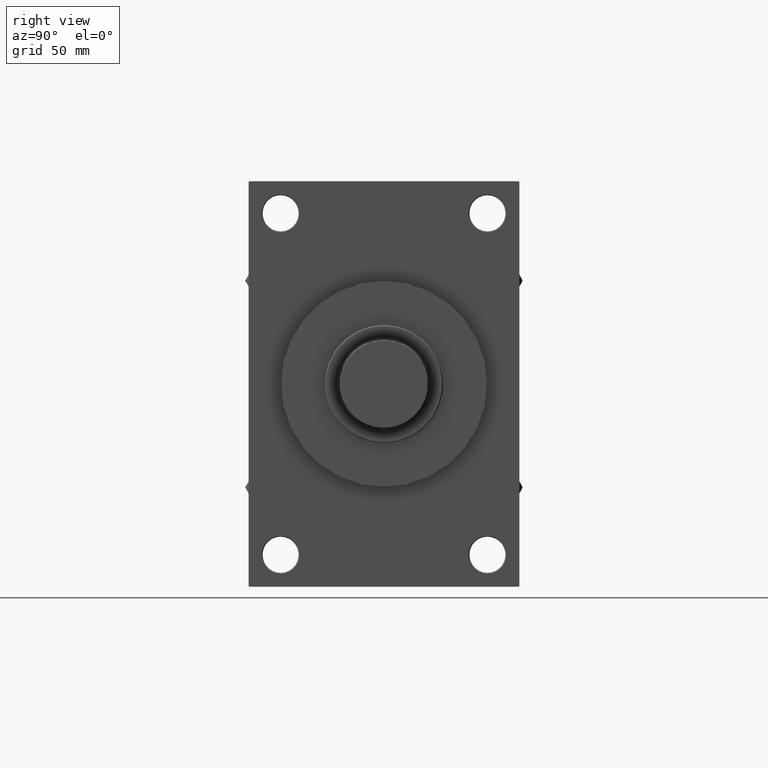
[diagram: clean part render]
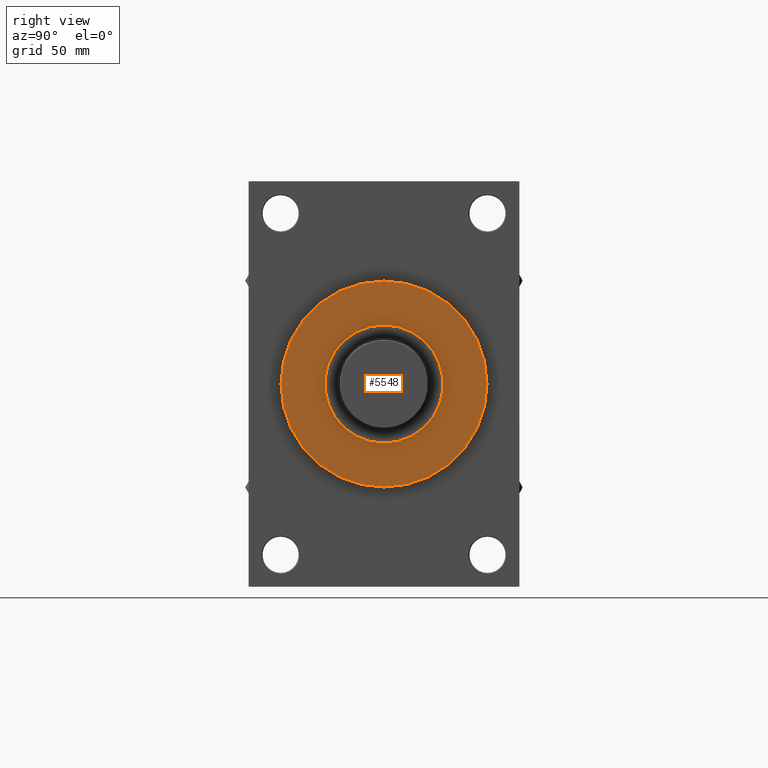
[diagram: same view with one face highlighted and labeled with its STEP entity id]
A machine part, right view. The second image highlights one B-rep face of the part: STEP entity #5548.
In plain terms, the highlighted planar face has unit normal (1, -0, -0).
Its self-contained STEP definition (entity closure, byte-faithful):
#283 = DIRECTION ( 'NONE',  ( 1.000000000000000000, 0.000000000000000000, 0.000000000000000000 ) ) ;
#2369 = EDGE_LOOP ( 'NONE', ( #7704, #5018 ) ) ;
#3419 = DIRECTION ( 'NONE',  ( 1.000000000000000000, 0.000000000000000000, 0.000000000000000000 ) ) ;
#3451 = CARTESIAN_POINT ( 'NONE',  ( 0.000000000000000000, 0.000000000000000000, 43.25999999999999801 ) ) ;
#3571 = CARTESIAN_POINT ( 'NONE',  ( 0.000000000000000000, 0.000000000000000000, 43.25999999999999801 ) ) ;
#5018 = ORIENTED_EDGE ( 'NONE', *, *, #32729, .T. ) ;
#5548 = ADVANCED_FACE ( 'NONE', ( #7234, #47410 ), #43773, .T. ) ;
#6362 = CARTESIAN_POINT ( 'NONE',  ( 0.000000000000000000, 0.000000000000000000, 43.25999999999999801 ) ) ;
#7208 = VERTEX_POINT ( 'NONE', #36078 ) ;
#7234 = FACE_BOUND ( 'NONE', #37632, .T. ) ;
#7704 = ORIENTED_EDGE ( 'NONE', *, *, #32087, .T. ) ;
#9775 = DIRECTION ( 'NONE',  ( 0.000000000000000000, 0.000000000000000000, 1.000000000000000000 ) ) ;
#10787 = CIRCLE ( 'NONE', #14686, 36.00000000000000000 ) ;
#10891 = DIRECTION ( 'NONE',  ( 0.000000000000000000, 0.000000000000000000, 1.000000000000000000 ) ) ;
#11030 = CIRCLE ( 'NONE', #42036, 62.75000000000000000 ) ;
#13541 = AXIS2_PLACEMENT_3D ( 'NONE', #3571, #10891, #29377 ) ;
#14535 = VERTEX_POINT ( 'NONE', #17293 ) ;
#14686 = AXIS2_PLACEMENT_3D ( 'NONE', #6362, #9775, #32631 ) ;
#17293 = CARTESIAN_POINT ( 'NONE',  ( -62.75000000000000000, 0.000000000000000000, 43.25999999999999801 ) ) ;
#17668 = DIRECTION ( 'NONE',  ( 0.000000000000000000, 0.000000000000000000, 1.000000000000000000 ) ) ;
#18634 = CARTESIAN_POINT ( 'NONE',  ( 0.000000000000000000, 0.000000000000000000, 43.25999999999999801 ) ) ;
#20048 = VERTEX_POINT ( 'NONE', #47818 ) ;
#20445 = ORIENTED_EDGE ( 'NONE', *, *, #44913, .F. ) ;
#23253 = AXIS2_PLACEMENT_3D ( 'NONE', #37505, #36779, #3419 ) ;
#24481 = EDGE_CURVE ( 'NONE', #7208, #38054, #28682, .T. ) ;
#28682 = CIRCLE ( 'NONE', #23253, 36.00000000000000000 ) ;
#28810 = AXIS2_PLACEMENT_3D ( 'NONE', #3451, #36814, #283 ) ;
#29088 = DIRECTION ( 'NONE',  ( 1.000000000000000000, 0.000000000000000000, 0.000000000000000000 ) ) ;
#29377 = DIRECTION ( 'NONE',  ( 1.000000000000000000, 0.000000000000000000, -0.000000000000000000 ) ) ;
#29574 = CIRCLE ( 'NONE', #28810, 62.75000000000000000 ) ;
#32087 = EDGE_CURVE ( 'NONE', #14535, #20048, #29574, .T. ) ;
#32631 = DIRECTION ( 'NONE',  ( 1.000000000000000000, 0.000000000000000000, 0.000000000000000000 ) ) ;
#32729 = EDGE_CURVE ( 'NONE', #20048, #14535, #11030, .T. ) ;
#35954 = ORIENTED_EDGE ( 'NONE', *, *, #24481, .F. ) ;
#36078 = CARTESIAN_POINT ( 'NONE',  ( -36.00000000000000000, 0.000000000000000000, 43.25999999999999801 ) ) ;
#36779 = DIRECTION ( 'NONE',  ( 0.000000000000000000, 0.000000000000000000, 1.000000000000000000 ) ) ;
#36814 = DIRECTION ( 'NONE',  ( 0.000000000000000000, 0.000000000000000000, 1.000000000000000000 ) ) ;
#37505 = CARTESIAN_POINT ( 'NONE',  ( 0.000000000000000000, 0.000000000000000000, 43.25999999999999801 ) ) ;
#37632 = EDGE_LOOP ( 'NONE', ( #35954, #20445 ) ) ;
#38054 = VERTEX_POINT ( 'NONE', #46090 ) ;
#42036 = AXIS2_PLACEMENT_3D ( 'NONE', #18634, #17668, #29088 ) ;
#43773 = PLANE ( 'NONE',  #13541 ) ;
#44913 = EDGE_CURVE ( 'NONE', #38054, #7208, #10787, .T. ) ;
#46090 = CARTESIAN_POINT ( 'NONE',  ( 36.00000000000000000, 4.408728476930470856E-15, 43.25999999999999801 ) ) ;
#47410 = FACE_OUTER_BOUND ( 'NONE', #2369, .T. ) ;
#47818 = CARTESIAN_POINT ( 'NONE',  ( 62.75000000000000000, 7.684658664649641591E-15, 43.25999999999999801 ) ) ;